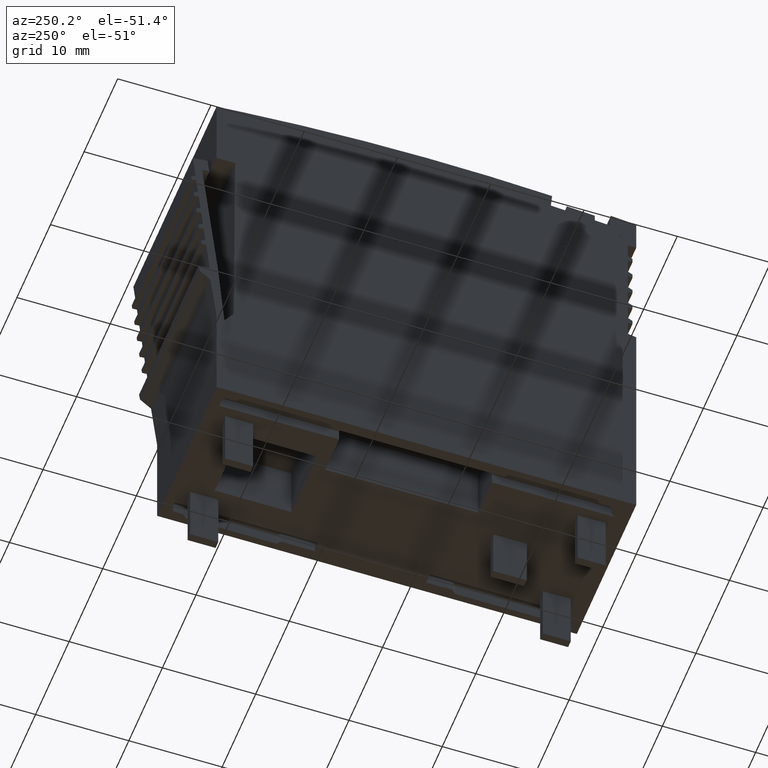
[diagram: clean part render]
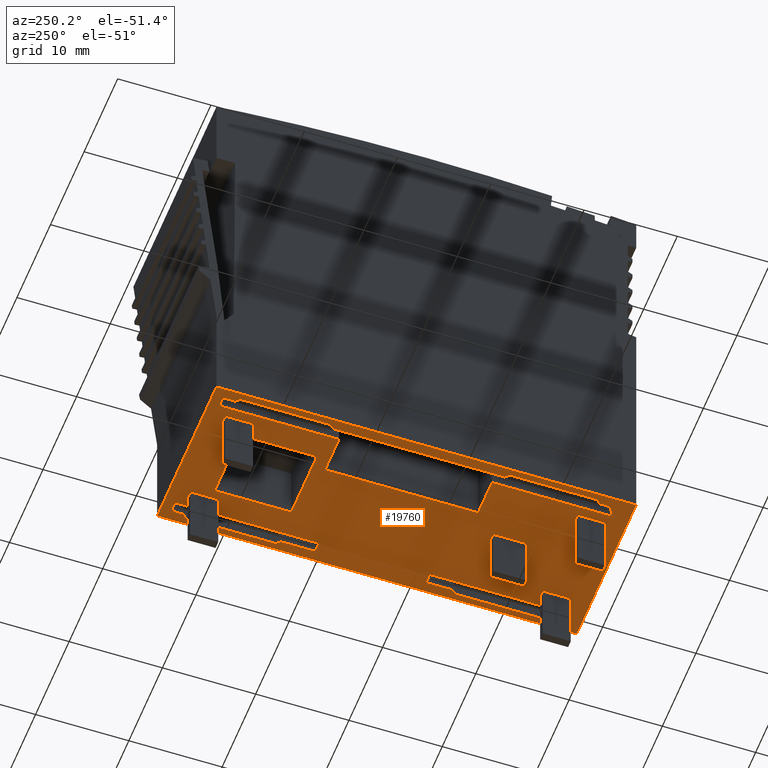
[diagram: same view with one face highlighted and labeled with its STEP entity id]
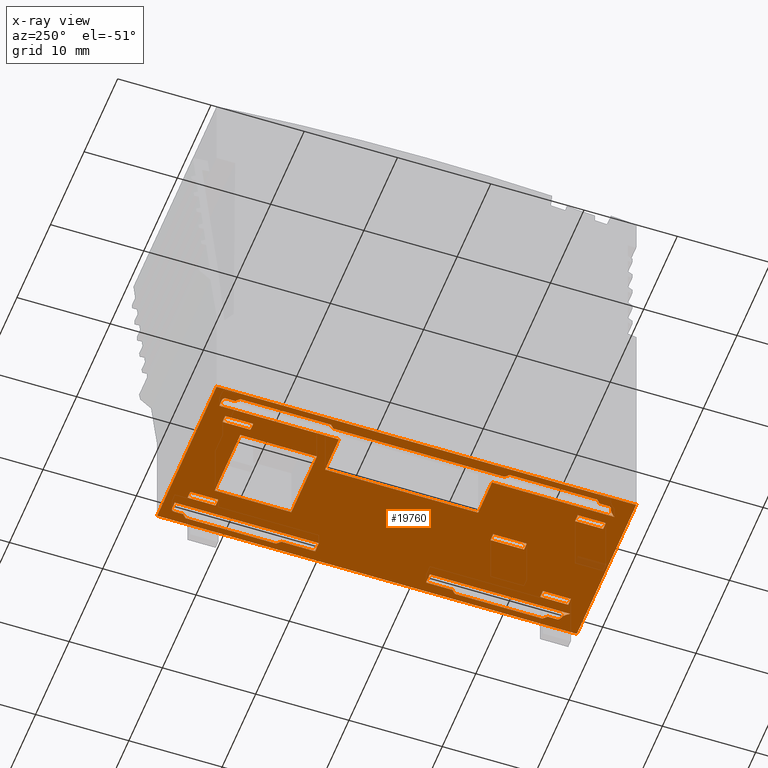
[diagram: x-ray of the same camera — body ghosted, the highlighted face saturated]
A machine part, auxiliary view. The second image highlights one B-rep face of the part: STEP entity #19760.
The next image is the same camera in x-ray: the body ghosted, the highlighted face saturated — about 1% of this face is hidden behind the body in this view.
In plain terms, the highlighted planar face has unit normal (-0, 0, 1).
Its self-contained STEP definition (entity closure, byte-faithful):
#6670=CARTESIAN_POINT('',(181.676054787217,47.2590821833395,
-0.100000007766545));
#6680=VERTEX_POINT('',#6670);
#6710=CARTESIAN_POINT('',(126.236365948156,47.2590821833395,
-0.100000002892187));
#6720=DIRECTION('',(-1.,-3.69971924844519E-23,8.79218364779888E-11));
#6730=VECTOR('',#6720,1.);
#6740=LINE('',#6710,#6730);
#6750=CARTESIAN_POINT('',(136.67605483827,47.2590821833395,
-0.100000003810063));
#6760=VERTEX_POINT('',#6750);
#6770=EDGE_CURVE('',#6680,#6760,#6740,.T.);
#14040=CARTESIAN_POINT('',(136.676054836714,47.2590821833395,
-17.8000000061386));
#14050=VERTEX_POINT('',#14040);
#14080=CARTESIAN_POINT('',(126.236365947378,47.2590821833395,
-17.8000000056796));
#14090=DIRECTION('',(1.,3.69971924844519E-23,-4.39610015057212E-11));
#14100=VECTOR('',#14090,1.);
#14110=LINE('',#14080,#14100);
#14120=CARTESIAN_POINT('',(181.676054785661,47.2590821833395,
-17.8000000081168));
#14130=VERTEX_POINT('',#14120);
#14140=EDGE_CURVE('',#14050,#14130,#14110,.T.);
#14390=CARTESIAN_POINT('',(136.676055084548,47.2590821833395,
-10.9500000050984));
#14400=DIRECTION('',(8.79218364779888E-11,1.12560738891045E-32,1.));
#14410=VECTOR('',#14400,1.);
#14420=LINE('',#14390,#14410);
#14430=EDGE_CURVE('',#14050,#6760,#14420,.T.);
#14560=CARTESIAN_POINT('',(180.963061039701,47.2590821833395,
-10.0441659309845));
#14570=DIRECTION('',(-3.69971924844519E-23,1.,-5.30691085919972E-33));
#14580=DIRECTION('',(1.,3.69971924844519E-23,-4.39610015057212E-11));
#14590=AXIS2_PLACEMENT_3D('',#14560,#14570,#14580);
#14600=PLANE('',#14590);
#14610=CARTESIAN_POINT('',(126.2363659476,47.2590821833395,
-12.7547303869674));
#14620=DIRECTION('',(1.,3.69971924844519E-23,-4.39610015057212E-11));
#14630=VECTOR('',#14620,1.);
#14640=LINE('',#14610,#14630);
#14650=CARTESIAN_POINT('',(141.044359126315,47.2590821833395,
-12.7547303876184));
#14660=VERTEX_POINT('',#14650);
#14670=CARTESIAN_POINT('',(149.253819902327,47.2590821833395,
-12.7547303879793));
#14680=VERTEX_POINT('',#14670);
#14690=EDGE_CURVE('',#14660,#14680,#14640,.T.);
#14700=ORIENTED_EDGE('',*,*,#14690,.F.);
#14710=CARTESIAN_POINT('',(149.253819902406,47.2590821833395,
-10.9500000056513));
#14720=DIRECTION('',(4.39610015057212E-11,6.93334449371617E-33,1.));
#14730=VECTOR('',#14720,1.);
#14740=LINE('',#14710,#14730);
#14750=CARTESIAN_POINT('',(149.253819902661,47.2590821833395,
-5.14526961240983));
#14760=VERTEX_POINT('',#14750);
#14770=EDGE_CURVE('',#14680,#14760,#14740,.T.);
#14780=ORIENTED_EDGE('',*,*,#14770,.F.);
#14790=CARTESIAN_POINT('',(126.236365947934,47.2590821833395,
-5.14526961139796));
#14800=DIRECTION('',(-1.,-3.69971924844519E-23,4.39610015057212E-11));
#14810=VECTOR('',#14800,1.);
#14820=LINE('',#14790,#14810);
#14830=CARTESIAN_POINT('',(141.044359126649,47.2590821833395,
-5.14526961204893));
#14840=VERTEX_POINT('',#14830);
#14850=EDGE_CURVE('',#14760,#14840,#14820,.T.);
#14860=ORIENTED_EDGE('',*,*,#14850,.F.);
#14870=CARTESIAN_POINT('',(141.044359126394,47.2590821833395,
-10.9500000052904));
#14880=DIRECTION('',(-4.39610015057212E-11,-6.93334449371617E-33,-1.));
#14890=VECTOR('',#14880,1.);
#14900=LINE('',#14870,#14890);
#14910=EDGE_CURVE('',#14840,#14660,#14900,.T.);
#14920=ORIENTED_EDGE('',*,*,#14910,.F.);
#14930=EDGE_LOOP('',(#14920,#14860,#14780,#14700));
#14940=FACE_BOUND('',#14930,.T.);
#14950=CARTESIAN_POINT('',(126.236365947749,47.2590821833322,
-9.34999997788276));
#14960=DIRECTION('',(1.,7.39941378505932E-23,-1.66533453687311E-16));
#14970=VECTOR('',#14960,1.);
#14980=LINE('',#14950,#14970);
#14990=CARTESIAN_POINT('',(169.376054883166,47.2590821833395,
-9.34999997788277));
#15000=VERTEX_POINT('',#14990);
#15010=CARTESIAN_POINT('',(172.976054883286,47.2590821833395,
-9.34999997825637));
#15020=VERTEX_POINT('',#15010);
#15030=EDGE_CURVE('',#15000,#15020,#14980,.T.);
#15040=ORIENTED_EDGE('',*,*,#15030,.F.);
#15050=CARTESIAN_POINT('',(172.976054883216,47.2590821833322,
-10.9500000066942));
#15060=DIRECTION('',(4.39610015057212E-11,5.30691702046996E-33,1.));
#15070=VECTOR('',#15060,1.);
#15080=LINE('',#15050,#15070);
#15090=CARTESIAN_POINT('',(172.976054883321,47.2590821833395,
-8.54999997771668));
#15100=VERTEX_POINT('',#15090);
#15110=EDGE_CURVE('',#15020,#15100,#15080,.T.);
#15120=ORIENTED_EDGE('',*,*,#15110,.F.);
#15130=CARTESIAN_POINT('',(126.236365947785,47.2590821833322,
-8.54999997771667));
#15140=DIRECTION('',(-1.,-7.39941378505932E-23,1.66533453687311E-16));
#15150=VECTOR('',#15140,1.);
#15160=LINE('',#15130,#15150);
#15170=CARTESIAN_POINT('',(169.376054883201,47.2590821833395,
-8.54999997771668));
#15180=VERTEX_POINT('',#15170);
#15190=EDGE_CURVE('',#15100,#15180,#15160,.T.);
#15200=ORIENTED_EDGE('',*,*,#15190,.F.);
#15210=CARTESIAN_POINT('',(169.376054883096,47.2590821833322,
-10.9500000065359));
#15220=DIRECTION('',(4.39610015057212E-11,5.30691702046996E-33,1.));
#15230=VECTOR('',#15220,1.);
#15240=LINE('',#15210,#15230);
#15250=EDGE_CURVE('',#15000,#15180,#15240,.T.);
#15260=ORIENTED_EDGE('',*,*,#15250,.T.);
#15270=EDGE_LOOP('',(#15260,#15200,#15120,#15040));
#15280=FACE_BOUND('',#15270,.T.);
#15290=CARTESIAN_POINT('',(126.236365947521,47.2590821833322,
-14.5499999946325));
#15300=DIRECTION('',(1.,7.39941378505932E-23,-1.66533453687311E-16));
#15310=VECTOR('',#15300,1.);
#15320=LINE('',#15290,#15310);
#15330=CARTESIAN_POINT('',(138.776089765475,47.2590821833395,
-14.5499999946325));
#15340=VERTEX_POINT('',#15330);
#15350=CARTESIAN_POINT('',(141.776089765475,47.2590821833395,
-14.5499999946325));
#15360=VERTEX_POINT('',#15350);
#15370=EDGE_CURVE('',#15340,#15360,#15320,.T.);
#15380=ORIENTED_EDGE('',*,*,#15370,.F.);
#15390=CARTESIAN_POINT('',(141.776089765633,47.2590821833322,
-10.9500000053226));
#15400=DIRECTION('',(4.39610015057212E-11,5.30691702046996E-33,1.));
#15410=VECTOR('',#15400,1.);
#15420=LINE('',#15390,#15410);
#15430=CARTESIAN_POINT('',(141.77608976551,47.2590821833395,
-13.7499999944664));
#15440=VERTEX_POINT('',#15430);
#15450=EDGE_CURVE('',#15360,#15440,#15420,.T.);
#15460=ORIENTED_EDGE('',*,*,#15450,.F.);
#15470=CARTESIAN_POINT('',(126.236365947556,47.2590821833322,
-13.7499999944664));
#15480=DIRECTION('',(-1.,-7.39941378505932E-23,1.66533453687311E-16));
#15490=VECTOR('',#15480,1.);
#15500=LINE('',#15470,#15490);
#15510=CARTESIAN_POINT('',(138.77608976551,47.2590821833395,
-13.7499999944664));
#15520=VERTEX_POINT('',#15510);
#15530=EDGE_CURVE('',#15440,#15520,#15500,.T.);
#15540=ORIENTED_EDGE('',*,*,#15530,.F.);
#15550=CARTESIAN_POINT('',(138.776089765633,47.2590821833322,
-10.9500000051907));
#15560=DIRECTION('',(4.39610015057212E-11,5.30691702046996E-33,1.));
#15570=VECTOR('',#15560,1.);
#15580=LINE('',#15550,#15570);
#15590=EDGE_CURVE('',#15340,#15520,#15580,.T.);
#15600=ORIENTED_EDGE('',*,*,#15590,.T.);
#15610=EDGE_LOOP('',(#15600,#15540,#15460,#15380));
#15620=FACE_BOUND('',#15610,.T.);
#15630=CARTESIAN_POINT('',(159.349607294967,47.2590821833395,
-10.9500000060952));
#15640=DIRECTION('',(-0.707106781124382,-2.61609656826609E-23,
0.707106781248713));
#15650=VECTOR('',#15640,1.);
#15660=LINE('',#15630,#15650);
#15670=CARTESIAN_POINT('',(149.59960729426,47.2590821833395,
-1.20000000367321));
#15680=VERTEX_POINT('',#15670);
#15690=CARTESIAN_POINT('',(149.19960723598,47.2590821833395,
-0.799999945323623));
#15700=VERTEX_POINT('',#15690);
#15710=EDGE_CURVE('',#15680,#15700,#15660,.T.);
#15720=ORIENTED_EDGE('',*,*,#15710,.F.);
#15730=CARTESIAN_POINT('',(126.236365948125,47.2590821833395,
-0.799999943304655));
#15740=DIRECTION('',(-1.,-3.69971924844519E-23,8.79217809668375E-11));
#15750=VECTOR('',#15740,1.);
#15760=LINE('',#15730,#15750);
#15770=CARTESIAN_POINT('',(139.476054985586,47.2590821833395,
-0.799999944468712));
#15780=VERTEX_POINT('',#15770);
#15790=EDGE_CURVE('',#15700,#15780,#15760,.T.);
#15800=ORIENTED_EDGE('',*,*,#15790,.F.);
#15810=CARTESIAN_POINT('',(126.236365947543,47.2590821833395,
-14.0396889801831));
#15820=DIRECTION('',(-0.707106781248722,-2.61609656985793E-23,
-0.707106781124373));
#15830=VECTOR('',#15820,1.);
#15840=LINE('',#15810,#15830);
#15850=CARTESIAN_POINT('',(139.076054927236,47.2590821833395,
-1.20000000274799));
#15860=VERTEX_POINT('',#15850);
#15870=EDGE_CURVE('',#15780,#15860,#15840,.T.);
#15880=ORIENTED_EDGE('',*,*,#15870,.F.);
#15890=CARTESIAN_POINT('',(126.236365948108,47.2590821833395,
-1.20000000161908));
#15900=DIRECTION('',(-1.,-3.69971924844519E-23,8.79229155242228E-11));
#15910=VECTOR('',#15900,1.);
#15920=LINE('',#15890,#15910);
#15930=CARTESIAN_POINT('',(138.076054927658,47.2590821833395,
-1.20000000266006));
#15940=VERTEX_POINT('',#15930);
#15950=EDGE_CURVE('',#15860,#15940,#15920,.T.);
#15960=ORIENTED_EDGE('',*,*,#15950,.F.);
#15970=CARTESIAN_POINT('',(138.076054927632,47.2590821833395,
-1.50000000253357));
#15980=DIRECTION('',(-3.69971924844519E-23,1.,-5.30690754904639E-33));
#15990=DIRECTION('',(1.,3.69971924844519E-23,-8.79217809668375E-11));
#16000=AXIS2_PLACEMENT_3D('',#15970,#15980,#15990);
#16010=CIRCLE('',#16000,0.299999999873505);
#16020=CARTESIAN_POINT('',(137.776054927758,47.2590821833395,
-1.50000000250719));
#16030=VERTEX_POINT('',#16020);
#16040=EDGE_CURVE('',#16030,#15940,#16010,.T.);
#16050=ORIENTED_EDGE('',*,*,#16040,.T.);
#16060=CARTESIAN_POINT('',(137.776054926927,47.2590821833395,
-10.9500000051468));
#16070=DIRECTION('',(-8.79217809668375E-11,-1.12560718353478E-32,-1.));
#16080=VECTOR('',#16070,1.);
#16090=LINE('',#16060,#16080);
#16100=CARTESIAN_POINT('',(137.776054927688,47.2590821833395,
-2.30000000186649));
#16110=VERTEX_POINT('',#16100);
#16120=EDGE_CURVE('',#16030,#16110,#16090,.T.);
#16130=ORIENTED_EDGE('',*,*,#16120,.F.);
#16140=CARTESIAN_POINT('',(126.236365948059,47.2590821833395,
-2.30000000085191));
#16150=DIRECTION('',(1.,3.69971924844519E-23,-8.79210323164466E-11));
#16160=VECTOR('',#16150,1.);
#16170=LINE('',#16140,#16160);
#16180=CARTESIAN_POINT('',(150.603098616746,47.2590821833395,
-2.30000000299426));
#16190=VERTEX_POINT('',#16180);
#16200=EDGE_CURVE('',#16110,#16190,#16170,.T.);
#16210=ORIENTED_EDGE('',*,*,#16200,.F.);
#16220=CARTESIAN_POINT('',(150.603098615986,47.2590821833395,
-10.9500000057107));
#16230=DIRECTION('',(-8.79217809668375E-11,-1.12560718353478E-32,-1.));
#16240=VECTOR('',#16230,1.);
#16250=LINE('',#16220,#16240);
#16260=CARTESIAN_POINT('',(150.603098616382,47.2590821833395,
-6.44313980009934));
#16270=VERTEX_POINT('',#16260);
#16280=EDGE_CURVE('',#16190,#16270,#16250,.T.);
#16290=ORIENTED_EDGE('',*,*,#16280,.F.);
#16300=CARTESIAN_POINT('',(126.236365947877,47.2590821833395,
-6.44313979795697));
#16310=DIRECTION('',(1.,3.69971924844519E-23,-8.79217864460689E-11));
#16320=VECTOR('',#16310,1.);
#16330=LINE('',#16300,#16320);
#16340=CARTESIAN_POINT('',(167.00843361951,47.2590821833395,
-6.44313980154173));
#16350=VERTEX_POINT('',#16340);
#16360=EDGE_CURVE('',#16270,#16350,#16330,.T.);
#16370=ORIENTED_EDGE('',*,*,#16360,.F.);
#16380=CARTESIAN_POINT('',(167.008433619114,47.2590821833395,
-10.9500000064318));
#16390=DIRECTION('',(8.79217809668375E-11,1.12560718353478E-32,1.));
#16400=VECTOR('',#16390,1.);
#16410=LINE('',#16380,#16400);
#16420=CARTESIAN_POINT('',(167.008433619874,47.2590821833395,
-2.30000000443663));
#16430=VERTEX_POINT('',#16420);
#16440=EDGE_CURVE('',#16350,#16430,#16410,.T.);
#16450=ORIENTED_EDGE('',*,*,#16440,.F.);
#16460=CARTESIAN_POINT('',(126.236365948059,47.2590821833395,
-2.30000000085191));
#16470=DIRECTION('',(1.,3.69971924844519E-23,-8.79210323164466E-11));
#16480=VECTOR('',#16470,1.);
#16490=LINE('',#16460,#16480);
#16500=CARTESIAN_POINT('',(180.152221503047,47.2590821833395,
-2.30000000559225));
#16510=VERTEX_POINT('',#16500);
#16520=EDGE_CURVE('',#16430,#16510,#16490,.T.);
#16530=ORIENTED_EDGE('',*,*,#16520,.F.);
#16540=CARTESIAN_POINT('',(180.849089500017,47.2590821833395,
-1.00000000829802));
#16550=DIRECTION('',(-3.69971924844519E-23,1.,-5.30690754904639E-33));
#16560=DIRECTION('',(8.79217809668375E-11,8.55976729388708E-33,1.));
#16570=AXIS2_PLACEMENT_3D('',#16540,#16550,#16560);
#16580=CIRCLE('',#16570,1.47499999937807);
#16590=CARTESIAN_POINT('',(179.433818995232,47.2590821833395,
-1.41549296425496));
#16600=VERTEX_POINT('',#16590);
#16610=EDGE_CURVE('',#16510,#16600,#16580,.T.);
#16620=ORIENTED_EDGE('',*,*,#16610,.F.);
#16630=CARTESIAN_POINT('',(179.14596736714,47.2590821833395,
-1.50000000614451));
#16640=DIRECTION('',(-3.69971924844519E-23,1.,-5.30690754904639E-33));
#16650=DIRECTION('',(1.,3.69971924844519E-23,-8.79217809668375E-11));
#16660=AXIS2_PLACEMENT_3D('',#16630,#16640,#16650);
#16670=CIRCLE('',#16660,0.299999999873505);
#16680=CARTESIAN_POINT('',(179.145967367166,47.2590821833395,
-1.20000000627102));
#16690=VERTEX_POINT('',#16680);
#16700=EDGE_CURVE('',#16690,#16600,#16670,.T.);
#16710=ORIENTED_EDGE('',*,*,#16700,.T.);
#16720=CARTESIAN_POINT('',(126.236365948108,47.2590821833395,
-1.20000000161905));
#16730=DIRECTION('',(-1.,-3.69971924844519E-23,8.79229155242228E-11));
#16740=VECTOR('',#16730,1.);
#16750=LINE('',#16720,#16740);
#16760=CARTESIAN_POINT('',(178.145967367585,47.2590821833395,
-1.2000000061831));
#16770=VERTEX_POINT('',#16760);
#16780=EDGE_CURVE('',#16690,#16770,#16750,.T.);
#16790=ORIENTED_EDGE('',*,*,#16780,.F.);
#16800=CARTESIAN_POINT('',(187.895967367038,47.2590821833395,
-10.9500000073501));
#16810=DIRECTION('',(-0.707106781124382,-2.61609656826609E-23,
0.707106781248713));
#16820=VECTOR('',#16810,1.);
#16830=LINE('',#16800,#16820);
#16840=CARTESIAN_POINT('',(177.745967367789,47.2590821833395,
-0.800000006316532));
#16850=VERTEX_POINT('',#16840);
#16860=EDGE_CURVE('',#16770,#16850,#16830,.T.);
#16870=ORIENTED_EDGE('',*,*,#16860,.F.);
#16880=CARTESIAN_POINT('',(126.236365948125,47.2590821833395,
-0.800000001787715));
#16890=DIRECTION('',(-1.,-3.69971924844519E-23,8.79217809668375E-11));
#16900=VECTOR('',#16890,1.);
#16910=LINE('',#16880,#16900);
#16920=CARTESIAN_POINT('',(168.351243056533,47.2590821833395,
-0.800000005490529));
#16930=VERTEX_POINT('',#16920);
#16940=EDGE_CURVE('',#16850,#16930,#16910,.T.);
#16950=ORIENTED_EDGE('',*,*,#16940,.F.);
#16960=CARTESIAN_POINT('',(126.236365946274,47.2590821833395,
-42.9148771083437));
#16970=DIRECTION('',(-0.707106781248722,-2.61609656985793E-23,
-0.707106781124373));
#16980=VECTOR('',#16970,1.);
#16990=LINE('',#16960,#16980);
#17000=CARTESIAN_POINT('',(167.951243056667,47.2590821833395,
-1.20000000528674));
#17010=VERTEX_POINT('',#17000);
#17020=EDGE_CURVE('',#16930,#17010,#16990,.T.);
#17030=ORIENTED_EDGE('',*,*,#17020,.F.);
#17040=CARTESIAN_POINT('',(126.236365948108,47.2590821833395,
-1.20000000161905));
#17050=DIRECTION('',(-1.,-3.69971924844519E-23,8.79229155242228E-11));
#17060=VECTOR('',#17050,1.);
#17070=LINE('',#17040,#17060);
#17080=EDGE_CURVE('',#17010,#15680,#17070,.T.);
#17090=ORIENTED_EDGE('',*,*,#17080,.F.);
#17100=EDGE_LOOP('',(#17090,#17030,#16950,#16870,#16790,#16710,#16620,
#16530,#16450,#16370,#16290,#16210,#16130,#16050,#15960,#15880,#15800,
#15720));
#17110=FACE_BOUND('',#17100,.T.);
#17120=CARTESIAN_POINT('',(126.236365947426,47.2590821833395,
-16.6999999950918));
#17130=DIRECTION('',(1.,3.69971924844519E-23,-8.76149708339824E-11));
#17140=VECTOR('',#17130,1.);
#17150=LINE('',#17120,#17140);
#17160=CARTESIAN_POINT('',(165.126054588178,47.2590821833395,
-16.6999999984991));
#17170=VERTEX_POINT('',#17160);
#17180=CARTESIAN_POINT('',(167.951203144194,47.2590821833395,
-16.6999999987467));
#17190=VERTEX_POINT('',#17180);
#17200=EDGE_CURVE('',#17170,#17190,#17150,.T.);
#17210=ORIENTED_EDGE('',*,*,#17200,.F.);
#17220=CARTESIAN_POINT('',(162.201203152679,47.2590821833395,
-10.9500000062205));
#17230=DIRECTION('',(0.707106781124382,2.61609656826609E-23,
-0.707106781248713));
#17240=VECTOR('',#17230,1.);
#17250=LINE('',#17220,#17240);
#17260=CARTESIAN_POINT('',(168.351203143995,47.2590821833395,
-17.0999999986176));
#17270=VERTEX_POINT('',#17260);
#17280=EDGE_CURVE('',#17190,#17270,#17250,.T.);
#17290=ORIENTED_EDGE('',*,*,#17280,.F.);
#17300=CARTESIAN_POINT('',(126.236365947409,47.2590821833395,
-17.0999999949148));
#17310=DIRECTION('',(1.,3.69971924844519E-23,-8.79217809668375E-11));
#17320=VECTOR('',#17310,1.);
#17330=LINE('',#17300,#17320);
#17340=CARTESIAN_POINT('',(177.745967366356,47.2590821833395,
-17.0999999994436));
#17350=VERTEX_POINT('',#17340);
#17360=EDGE_CURVE('',#17270,#17350,#17330,.T.);
#17370=ORIENTED_EDGE('',*,*,#17360,.F.);
#17380=CARTESIAN_POINT('',(126.236365945144,47.2590821833395,
-68.6096014115966));
#17390=DIRECTION('',(0.707106781248722,2.61609656985793E-23,
0.707106781124373));
#17400=VECTOR('',#17390,1.);
#17410=LINE('',#17380,#17400);
#17420=CARTESIAN_POINT('',(178.145967366222,47.2590821833395,
-16.6999999996478));
#17430=VERTEX_POINT('',#17420);
#17440=EDGE_CURVE('',#17350,#17430,#17410,.T.);
#17450=ORIENTED_EDGE('',*,*,#17440,.F.);
#17460=CARTESIAN_POINT('',(126.236365947426,47.2590821833395,
-16.6999999950998));
#17470=DIRECTION('',(1.,3.69971924844519E-23,-8.76149708339824E-11));
#17480=VECTOR('',#17470,1.);
#17490=LINE('',#17460,#17480);
#17500=CARTESIAN_POINT('',(179.1459673658,47.2590821833395,
-16.6999999997354));
#17510=VERTEX_POINT('',#17500);
#17520=EDGE_CURVE('',#17430,#17510,#17490,.T.);
#17530=ORIENTED_EDGE('',*,*,#17520,.F.);
#17540=CARTESIAN_POINT('',(179.145967365827,47.2590821833395,
-16.3999999998619));
#17550=DIRECTION('',(-3.69971924844519E-23,1.,-5.30690754904639E-33));
#17560=DIRECTION('',(1.,3.69971924844519E-23,-8.79217809668375E-11));
#17570=AXIS2_PLACEMENT_3D('',#17540,#17550,#17560);
#17580=CIRCLE('',#17570,0.299999999873505);
#17590=CARTESIAN_POINT('',(179.433818993904,47.2590821833395,
-16.4845070418005));
#17600=VERTEX_POINT('',#17590);
#17610=EDGE_CURVE('',#17600,#17510,#17580,.T.);
#17620=ORIENTED_EDGE('',*,*,#17610,.T.);
#17630=CARTESIAN_POINT('',(180.849089498619,47.2590821833395,
-16.8999999979983));
#17640=DIRECTION('',(-3.69971924844519E-23,1.,-5.30690754904639E-33));
#17650=DIRECTION('',(1.,3.69971924844519E-23,-8.79217809668375E-11));
#17660=AXIS2_PLACEMENT_3D('',#17630,#17640,#17650);
#17670=CIRCLE('',#17660,1.47499999937807);
#17680=CARTESIAN_POINT('',(180.152477573273,47.2590821833395,
-15.5998627653837));
#17690=VERTEX_POINT('',#17680);
#17700=EDGE_CURVE('',#17600,#17690,#17670,.T.);
#17710=ORIENTED_EDGE('',*,*,#17700,.F.);
#17720=CARTESIAN_POINT('',(126.236365947475,47.2590821833395,
-15.5998627606433));
#17730=DIRECTION('',(-1.,-3.69971924844519E-23,8.79217679465713E-11));
#17740=VECTOR('',#17730,1.);
#17750=LINE('',#17720,#17740);
#17760=CARTESIAN_POINT('',(165.126054588275,47.2590821833395,
-15.5998627640626));
#17770=VERTEX_POINT('',#17760);
#17780=EDGE_CURVE('',#17690,#17770,#17750,.T.);
#17790=ORIENTED_EDGE('',*,*,#17780,.F.);
#17800=CARTESIAN_POINT('',(165.126054588684,47.2590821833395,
-10.9500000063491));
#17810=DIRECTION('',(-8.79217809668375E-11,-1.12560718353478E-32,-1.));
#17820=VECTOR('',#17810,1.);
#17830=LINE('',#17800,#17820);
#17840=EDGE_CURVE('',#17770,#17170,#17830,.T.);
#17850=ORIENTED_EDGE('',*,*,#17840,.F.);
#17860=EDGE_LOOP('',(#17850,#17790,#17710,#17620,#17530,#17450,#17370,
#17290,#17210));
#17870=FACE_BOUND('',#17860,.T.);
#17880=CARTESIAN_POINT('',(138.076054926961,47.2590821833395,
-16.399999996251));
#17890=DIRECTION('',(-3.69971924844519E-23,1.,-5.30690754904639E-33));
#17900=DIRECTION('',(1.,3.69971924844519E-23,-8.79217809668375E-11));
#17910=AXIS2_PLACEMENT_3D('',#17880,#17890,#17900);
#17920=CIRCLE('',#17910,0.299999999873505);
#17930=CARTESIAN_POINT('',(138.076054926935,47.2590821833395,
-16.6999999961292));
#17940=VERTEX_POINT('',#17930);
#17950=CARTESIAN_POINT('',(137.776054927088,47.2590821833395,
-16.3999999962246));
#17960=VERTEX_POINT('',#17950);
#17970=EDGE_CURVE('',#17940,#17960,#17920,.T.);
#17980=ORIENTED_EDGE('',*,*,#17970,.T.);
#17990=CARTESIAN_POINT('',(126.236365947426,47.2590821833395,
-16.6999999950918));
#18000=DIRECTION('',(1.,3.69971924844519E-23,-8.76149708339824E-11));
#18010=VECTOR('',#18000,1.);
#18020=LINE('',#17990,#18010);
#18030=CARTESIAN_POINT('',(139.076054926518,47.2590821833395,
-16.6999999962168));
#18040=VERTEX_POINT('',#18030);
#18050=EDGE_CURVE('',#17940,#18040,#18020,.T.);
#18060=ORIENTED_EDGE('',*,*,#18050,.F.);
#18070=CARTESIAN_POINT('',(133.326054936263,47.2590821833395,
-10.9500000049511));
#18080=DIRECTION('',(0.707106781124382,2.61609656826609E-23,
-0.707106781248713));
#18090=VECTOR('',#18080,1.);
#18100=LINE('',#18070,#18090);
#18110=CARTESIAN_POINT('',(139.47605492631,47.2590821833395,
-17.0999999960789));
#18120=VERTEX_POINT('',#18110);
#18130=EDGE_CURVE('',#18040,#18120,#18100,.T.);
#18140=ORIENTED_EDGE('',*,*,#18130,.F.);
#18150=CARTESIAN_POINT('',(126.236365947409,47.2590821833395,
-17.0999999949149));
#18160=DIRECTION('',(1.,3.69971924844519E-23,-8.79217809668375E-11));
#18170=VECTOR('',#18160,1.);
#18180=LINE('',#18150,#18170);
#18190=CARTESIAN_POINT('',(149.199606006204,47.2590821833395,
-17.0999999969338));
#18200=VERTEX_POINT('',#18190);
#18210=EDGE_CURVE('',#18120,#18200,#18180,.T.);
#18220=ORIENTED_EDGE('',*,*,#18210,.F.);
#18230=CARTESIAN_POINT('',(126.236365946399,47.2590821833395,
-40.0632400527008));
#18240=DIRECTION('',(0.707106781248722,2.61609656985793E-23,
0.707106781124373));
#18250=VECTOR('',#18240,1.);
#18260=LINE('',#18230,#18250);
#18270=CARTESIAN_POINT('',(149.59960600607,47.2590821833395,
-16.6999999971387));
#18280=VERTEX_POINT('',#18270);
#18290=EDGE_CURVE('',#18200,#18280,#18260,.T.);
#18300=ORIENTED_EDGE('',*,*,#18290,.F.);
#18310=CARTESIAN_POINT('',(126.236365947426,47.2590821833395,
-16.6999999950918));
#18320=DIRECTION('',(1.,3.69971924844519E-23,-8.76149708339824E-11));
#18330=VECTOR('',#18320,1.);
#18340=LINE('',#18310,#18330);
#18350=CARTESIAN_POINT('',(153.226054561754,47.2590821833395,
-16.6999999974565));
#18360=VERTEX_POINT('',#18350);
#18370=EDGE_CURVE('',#18280,#18360,#18340,.T.);
#18380=ORIENTED_EDGE('',*,*,#18370,.F.);
#18390=CARTESIAN_POINT('',(153.226054562259,47.2590821833395,
-10.950000005826));
#18400=DIRECTION('',(8.79217809668375E-11,1.12560718353478E-32,1.));
#18410=VECTOR('',#18400,1.);
#18420=LINE('',#18390,#18410);
#18430=CARTESIAN_POINT('',(153.22605456185,47.2590821833395,
-15.5998627630163));
#18440=VERTEX_POINT('',#18430);
#18450=EDGE_CURVE('',#18360,#18440,#18420,.T.);
#18460=ORIENTED_EDGE('',*,*,#18450,.F.);
#18470=CARTESIAN_POINT('',(126.236365947475,47.2590821833395,
-15.5998627606433));
#18480=DIRECTION('',(-1.,-3.69971924844519E-23,8.79217809668375E-11));
#18490=VECTOR('',#18480,1.);
#18500=LINE('',#18470,#18490);
#18510=CARTESIAN_POINT('',(137.776054927158,47.2590821833395,
-15.5998627616579));
#18520=VERTEX_POINT('',#18510);
#18530=EDGE_CURVE('',#18440,#18520,#18500,.T.);
#18540=ORIENTED_EDGE('',*,*,#18530,.F.);
#18550=CARTESIAN_POINT('',(137.776054927567,47.2590821833395,
-10.9500000051468));
#18560=DIRECTION('',(-8.79217809668375E-11,-1.12560718353478E-32,-1.));
#18570=VECTOR('',#18560,1.);
#18580=LINE('',#18550,#18570);
#18590=EDGE_CURVE('',#18520,#17960,#18580,.T.);
#18600=ORIENTED_EDGE('',*,*,#18590,.F.);
#18610=EDGE_LOOP('',(#18600,#18540,#18460,#18380,#18300,#18220,#18140,
#18060,#17980));
#18620=FACE_BOUND('',#18610,.T.);
#18630=CARTESIAN_POINT('',(126.236365947978,47.2590821833322,
-4.14999999732699));
#18640=DIRECTION('',(1.,7.39941378505932E-23,-1.66533453687311E-16));
#18650=VECTOR('',#18640,1.);
#18660=LINE('',#18630,#18650);
#18670=CARTESIAN_POINT('',(138.776089765967,47.2590821833395,
-4.14999999732699));
#18680=VERTEX_POINT('',#18670);
#18690=CARTESIAN_POINT('',(141.776089765967,47.2590821833395,
-4.14999999732699));
#18700=VERTEX_POINT('',#18690);
#18710=EDGE_CURVE('',#18680,#18700,#18660,.T.);
#18720=ORIENTED_EDGE('',*,*,#18710,.F.);
#18730=CARTESIAN_POINT('',(141.776089765668,47.2590821833322,
-10.9500000053226));
#18740=DIRECTION('',(4.39610015057212E-11,5.30691702046996E-33,1.));
#18750=VECTOR('',#18740,1.);
#18760=LINE('',#18730,#18750);
#18770=CARTESIAN_POINT('',(141.776089766002,47.2590821833395,
-3.3499999971609));
#18780=VERTEX_POINT('',#18770);
#18790=EDGE_CURVE('',#18700,#18780,#18760,.T.);
#18800=ORIENTED_EDGE('',*,*,#18790,.F.);
#18810=CARTESIAN_POINT('',(126.236365948013,47.2590821833322,
-3.3499999971609));
#18820=DIRECTION('',(-1.,-7.39941378505932E-23,1.66533453687311E-16));
#18830=VECTOR('',#18820,1.);
#18840=LINE('',#18810,#18830);
#18850=CARTESIAN_POINT('',(138.776089766002,47.2590821833395,
-3.3499999971609));
#18860=VERTEX_POINT('',#18850);
#18870=EDGE_CURVE('',#18780,#18860,#18840,.T.);
#18880=ORIENTED_EDGE('',*,*,#18870,.F.);
#18890=CARTESIAN_POINT('',(138.776089765668,47.2590821833322,
-10.9500000051907));
#18900=DIRECTION('',(4.39610015057212E-11,5.30691702046996E-33,1.));
#18910=VECTOR('',#18900,1.);
#18920=LINE('',#18890,#18910);
#18930=EDGE_CURVE('',#18680,#18860,#18920,.T.);
#18940=ORIENTED_EDGE('',*,*,#18930,.T.);
#18950=EDGE_LOOP('',(#18940,#18880,#18800,#18720));
#18960=FACE_BOUND('',#18950,.T.);
#18970=CARTESIAN_POINT('',(126.236365947978,47.2590821833322,
-4.14999999781408));
#18980=DIRECTION('',(1.,7.39941378505932E-23,-1.66533453687311E-16));
#18990=VECTOR('',#18980,1.);
#19000=LINE('',#18970,#18990);
#19010=CARTESIAN_POINT('',(176.576089799338,47.2590821833395,
-4.14999999781409));
#19020=VERTEX_POINT('',#19010);
#19030=CARTESIAN_POINT('',(179.576089799338,47.2590821833395,
-4.14999999781409));
#19040=VERTEX_POINT('',#19030);
#19050=EDGE_CURVE('',#19020,#19040,#19000,.T.);
#19060=ORIENTED_EDGE('',*,*,#19050,.F.);
#19070=CARTESIAN_POINT('',(179.576089799039,47.2590821833322,
-10.9500000069843));
#19080=DIRECTION('',(4.39610015057212E-11,5.30691702046996E-33,1.));
#19090=VECTOR('',#19080,1.);
#19100=LINE('',#19070,#19090);
#19110=CARTESIAN_POINT('',(179.576089799373,47.2590821833395,
-3.34999999816142));
#19120=VERTEX_POINT('',#19110);
#19130=EDGE_CURVE('',#19040,#19120,#19100,.T.);
#19140=ORIENTED_EDGE('',*,*,#19130,.F.);
#19150=CARTESIAN_POINT('',(126.236365948013,47.2590821833322,
-3.34999999764799));
#19160=DIRECTION('',(-1.,-7.39941378505932E-23,1.66533453687311E-16));
#19170=VECTOR('',#19160,1.);
#19180=LINE('',#19150,#19170);
#19190=CARTESIAN_POINT('',(176.576089799373,47.2590821833395,
-3.349999997648));
#19200=VERTEX_POINT('',#19190);
#19210=EDGE_CURVE('',#19120,#19200,#19180,.T.);
#19220=ORIENTED_EDGE('',*,*,#19210,.F.);
#19230=CARTESIAN_POINT('',(176.576089799039,47.2590821833322,
-10.9500000068525));
#19240=DIRECTION('',(4.39610015057212E-11,5.30691702046996E-33,1.));
#19250=VECTOR('',#19240,1.);
#19260=LINE('',#19230,#19250);
#19270=EDGE_CURVE('',#19020,#19200,#19260,.T.);
#19280=ORIENTED_EDGE('',*,*,#19270,.T.);
#19290=EDGE_LOOP('',(#19280,#19220,#19140,#19060));
#19300=FACE_BOUND('',#19290,.T.);
#19310=CARTESIAN_POINT('',(126.236365947556,47.2590821833322,
-13.7499999967443));
#19320=DIRECTION('',(-1.,-7.39941378505932E-23,1.66533453687311E-16));
#19330=VECTOR('',#19320,1.);
#19340=LINE('',#19310,#19330);
#19350=CARTESIAN_POINT('',(179.576089798854,47.2590821833395,
-13.7499999967443));
#19360=VERTEX_POINT('',#19350);
#19370=CARTESIAN_POINT('',(176.576089798854,47.2590821833395,
-13.7499999967443));
#19380=VERTEX_POINT('',#19370);
#19390=EDGE_CURVE('',#19360,#19380,#19340,.T.);
#19400=ORIENTED_EDGE('',*,*,#19390,.F.);
#19410=CARTESIAN_POINT('',(176.576089798977,47.2590821833322,
-10.9500000068525));
#19420=DIRECTION('',(4.39610015057212E-11,5.30691702046996E-33,1.));
#19430=VECTOR('',#19420,1.);
#19440=LINE('',#19410,#19430);
#19450=CARTESIAN_POINT('',(176.576089798819,47.2590821833395,
-14.5499999969104));
#19460=VERTEX_POINT('',#19450);
#19470=EDGE_CURVE('',#19460,#19380,#19440,.T.);
#19480=ORIENTED_EDGE('',*,*,#19470,.T.);
#19490=CARTESIAN_POINT('',(126.236365947521,47.2590821833322,
-14.5499999969103));
#19500=DIRECTION('',(1.,7.39941378505932E-23,-1.66533453687311E-16));
#19510=VECTOR('',#19500,1.);
#19520=LINE('',#19490,#19510);
#19530=CARTESIAN_POINT('',(179.576089798819,47.2590821833395,
-14.5499999969104));
#19540=VERTEX_POINT('',#19530);
#19550=EDGE_CURVE('',#19460,#19540,#19520,.T.);
#19560=ORIENTED_EDGE('',*,*,#19550,.F.);
#19570=CARTESIAN_POINT('',(179.576089798977,47.2590821833322,
-10.9500000069843));
#19580=DIRECTION('',(4.39610015057212E-11,5.30691702046996E-33,1.));
#19590=VECTOR('',#19580,1.);
#19600=LINE('',#19570,#19590);
#19610=EDGE_CURVE('',#19540,#19360,#19600,.T.);
#19620=ORIENTED_EDGE('',*,*,#19610,.F.);
#19630=EDGE_LOOP('',(#19620,#19560,#19480,#19400));
#19640=FACE_BOUND('',#19630,.T.);
#19650=ORIENTED_EDGE('',*,*,#6770,.T.);
#19660=CARTESIAN_POINT('',(181.676054786263,47.2590821833395,
-10.9500000070767));
#19670=DIRECTION('',(8.79218364779888E-11,1.12560738891045E-32,1.));
#19680=VECTOR('',#19670,1.);
#19690=LINE('',#19660,#19680);
#19700=EDGE_CURVE('',#14130,#6680,#19690,.T.);
#19710=ORIENTED_EDGE('',*,*,#19700,.T.);
#19720=ORIENTED_EDGE('',*,*,#14140,.T.);
#19730=ORIENTED_EDGE('',*,*,#14430,.F.);
#19740=EDGE_LOOP('',(#19730,#19720,#19710,#19650));
#19750=FACE_OUTER_BOUND('',#19740,.T.);
#19760=ADVANCED_FACE('',(#14940,#15280,#15620,#17110,#17870,#18620,
#18960,#19300,#19640,#19750),#14600,.F.);